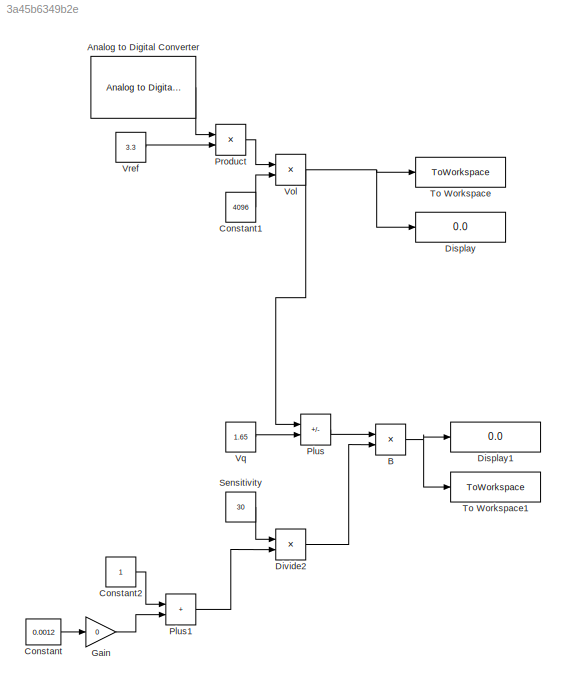
MODEL slx_3a45b6349b2e
KIND model
CONFIG AbsTol = auto
CONFIG EnableMultiTasking = on
CONFIG FixedStep = 0.01
CONFIG MaxStep = auto
CONFIG MinStep = auto
CONFIG RelTol = 1e-3
CONFIG SampleTimeConstraint = Unconstrained
CONFIG SolverName = FixedStepAuto
CONFIG StartTime = 0.0
CONFIG StopTime = 13
BLOCK [Reference] Analog to Digital Converter  REF=stm32f4xxblockslib/Analog to Digital Converter
  LibrarySourceBlock = stm32g4xxblockslib/Analog to Digital Converter
  SourceBlock = stm32f4xxblockslib/Analog to Digital Converter
  SourceType = stm32cube.blocks.AnalogInput
BLOCK [Product] B
  Inputs = */
BLOCK [Constant] Constant
  Value = 0.0012
BLOCK [Constant] Constant1
  Value = 4096
BLOCK [Constant] Constant2
BLOCK [Display] Display
  Decimation = 1
BLOCK [Display] Display1
  Decimation = 1
BLOCK [Product] Divide2
  Inputs = **
BLOCK [Gain] Gain
  Gain = 0
BLOCK [Sum] Plus
  IconShape = rectangular
  Inputs = +-
BLOCK [Sum] Plus1
  IconShape = rectangular
BLOCK [Product] Product
BLOCK [Constant] Sensitivity
  Value = 30
BLOCK [ToWorkspace] To Workspace
  FixptAsFi = on
  MaxDataPoints = inf
  SampleTime = -1
  SaveFormat = Structure With Time
  VariableName = voltage
BLOCK [ToWorkspace] To Workspace1
  FixptAsFi = on
  MaxDataPoints = inf
  SampleTime = -1
  SaveFormat = Structure With Time
  VariableName = B
BLOCK [Product] Vol
  Inputs = */
BLOCK [Constant] Vq
  Value = 1.65
BLOCK [Constant] Vref
  Value = 3.3
LINE Analog to Digital Converter:1 -> Product:1
NET B:1 -> Display1:1, To Workspace1:1
LINE Constant1:1 -> Vol:2
LINE Constant2:1 -> Plus1:1
LINE Constant:1 -> Gain:1
LINE Divide2:1 -> B:2
LINE Gain:1 -> Plus1:2
LINE Plus1:1 -> Divide2:2
LINE Plus:1 -> B:1
LINE Product:1 -> Vol:1
LINE Sensitivity:1 -> Divide2:1
NET Vol:1 -> Display:1, Plus:1, To Workspace:1
LINE Vq:1 -> Plus:2
LINE Vref:1 -> Product:2
note: NET lines group one-source signal fan-out (src -> all destinations, sorted); 1:1 wires keep LINE
